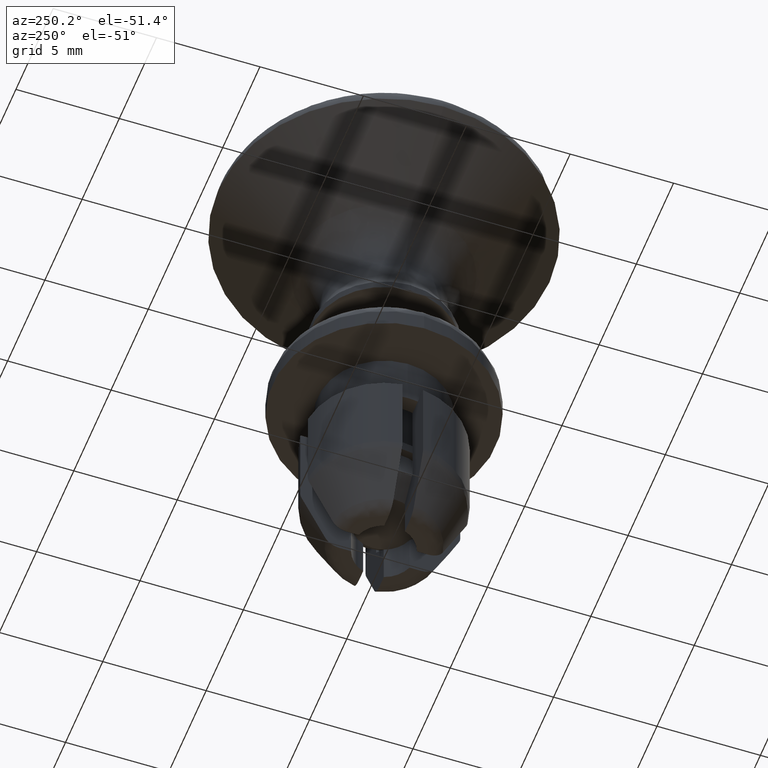
[diagram: clean part render]
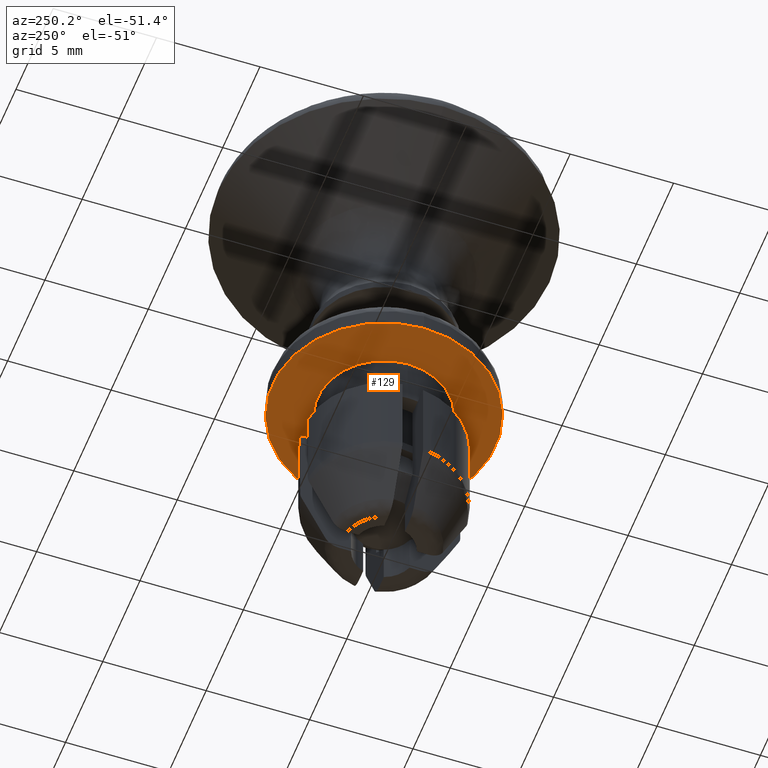
[diagram: same view with one face highlighted and labeled with its STEP entity id]
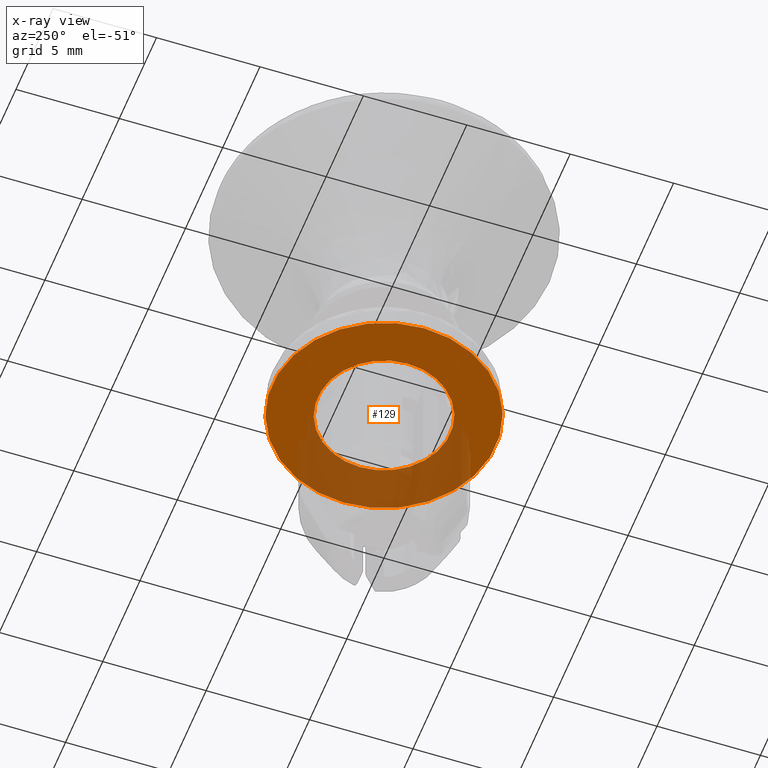
[diagram: x-ray of the same camera — body ghosted, the highlighted face saturated]
A machine part, auxiliary view. The second image highlights one B-rep face of the part: STEP entity #129.
The next image is the same camera in x-ray: the body ghosted, the highlighted face saturated — about 35% of this face is hidden behind the body in this view.
In plain terms, the highlighted planar face has unit normal (0, 0, -1).
Its self-contained STEP definition (entity closure, byte-faithful):
#129=ADVANCED_FACE('',(#367,#368),#366,.T.);
#366=PLANE('',#1138);
#367=FACE_OUTER_BOUND('',#1139,.T.);
#368=FACE_BOUND('',#1140,.T.);
#1135=CARTESIAN_POINT('',(1.24200000000E+01,-1.12236892330E+01,-2.00000000000E+00));
#1136=DIRECTION('',(0.00000000000E+00,0.00000000000E+00,-1.00000000000E+00));
#1137=DIRECTION('',(-1.00000000000E+00,0.00000000000E+00,0.00000000000E+00));
#1138=AXIS2_PLACEMENT_3D('',#1135,#1136,#1137);
#1139=EDGE_LOOP('',(#1788,#1789));
#1140=EDGE_LOOP('',(#1790,#1791));
#1788=ORIENTED_EDGE('',*,*,#2181,.T.);
#1789=ORIENTED_EDGE('',*,*,#2182,.T.);
#1790=ORIENTED_EDGE('',*,*,#2183,.T.);
#1791=ORIENTED_EDGE('',*,*,#2184,.T.);
#2181=EDGE_CURVE('',#2847,#2848,#2849,.T.);
#2182=EDGE_CURVE('',#2848,#2847,#2855,.T.);
#2183=EDGE_CURVE('',#2861,#2862,#2863,.T.);
#2184=EDGE_CURVE('',#2862,#2861,#2869,.T.);
#2847=VERTEX_POINT('',#4021);
#2848=VERTEX_POINT('',#4022);
#2849=CIRCLE('',#4026,5.40000000000E+00);
#2855=CIRCLE('',#4030,5.40000000000E+00);
#2861=VERTEX_POINT('',#4031);
#2862=VERTEX_POINT('',#4032);
#2863=CIRCLE('',#4036,3.20000000000E+00);
#2869=CIRCLE('',#4040,3.20000000000E+00);
#4021=CARTESIAN_POINT('',(-5.40000000000E+00,0.00000000000E+00,-2.00000000000E+00));
#4022=CARTESIAN_POINT('',(5.40000000000E+00,2.96059473233E-16,-2.00000000000E+00));
#4023=CARTESIAN_POINT('',(0.00000000000E+00,0.00000000000E+00,-2.00000000000E+00));
#4024=DIRECTION('',(-0.00000000000E+00,0.00000000000E+00,-1.00000000000E+00));
#4025=DIRECTION('',(-1.00000000000E+00,-1.22460635382E-16,0.00000000000E+00));
#4026=AXIS2_PLACEMENT_3D('',#4023,#4024,#4025);
#4027=CARTESIAN_POINT('',(0.00000000000E+00,0.00000000000E+00,-2.00000000000E+00));
#4028=DIRECTION('',(-0.00000000000E+00,0.00000000000E+00,-1.00000000000E+00));
#4029=DIRECTION('',(-1.00000000000E+00,-1.22460635382E-16,0.00000000000E+00));
#4030=AXIS2_PLACEMENT_3D('',#4027,#4028,#4029);
#4031=CARTESIAN_POINT('',(-3.20000000000E+00,0.00000000000E+00,-2.00000000000E+00));
#4032=CARTESIAN_POINT('',(3.20000000000E+00,4.44089209850E-16,-2.00000000000E+00));
#4033=CARTESIAN_POINT('',(-1.97215226305E-31,0.00000000000E+00,-2.00000000000E+00));
#4034=DIRECTION('',(0.00000000000E+00,0.00000000000E+00,1.00000000000E+00));
#4035=DIRECTION('',(-1.00000000000E+00,-1.22460635382E-16,0.00000000000E+00));
#4036=AXIS2_PLACEMENT_3D('',#4033,#4034,#4035);
#4037=CARTESIAN_POINT('',(-1.97215226305E-31,0.00000000000E+00,-2.00000000000E+00));
#4038=DIRECTION('',(0.00000000000E+00,0.00000000000E+00,1.00000000000E+00));
#4039=DIRECTION('',(-1.00000000000E+00,-1.22460635382E-16,0.00000000000E+00));
#4040=AXIS2_PLACEMENT_3D('',#4037,#4038,#4039);